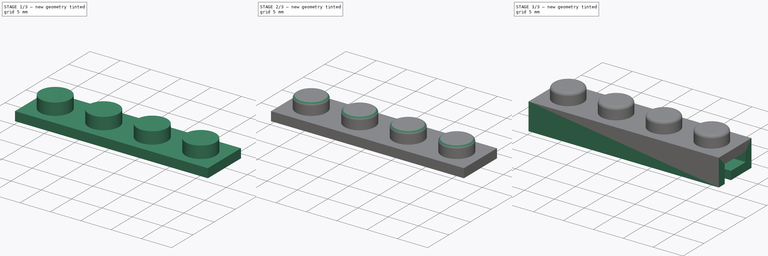
[diagram: build sequence overview — one tinted view per stage of 3, left to right]
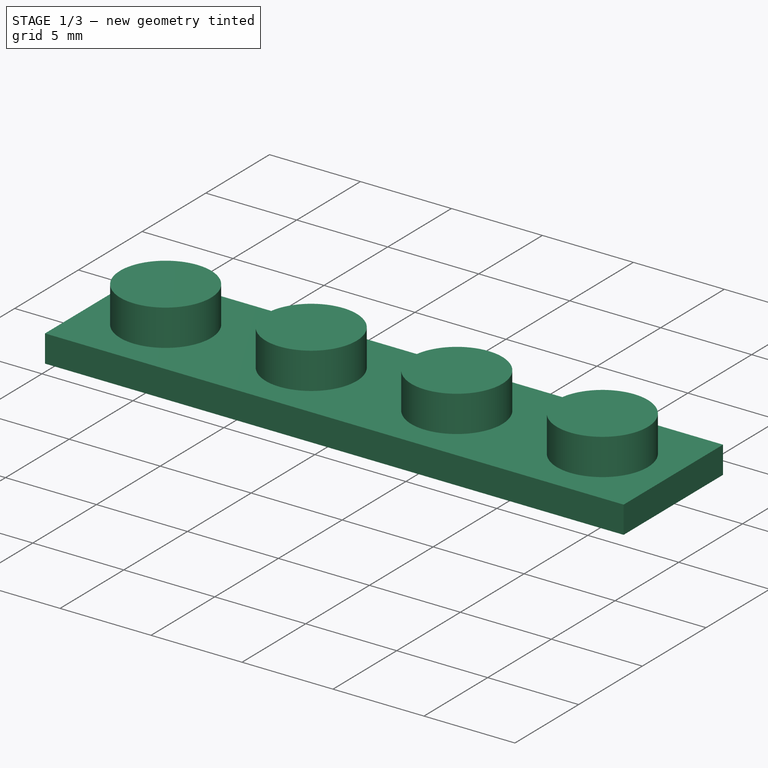
[diagram: stage 1 of 3 — iso view after this stage's code; geometry added in this stage tinted green]
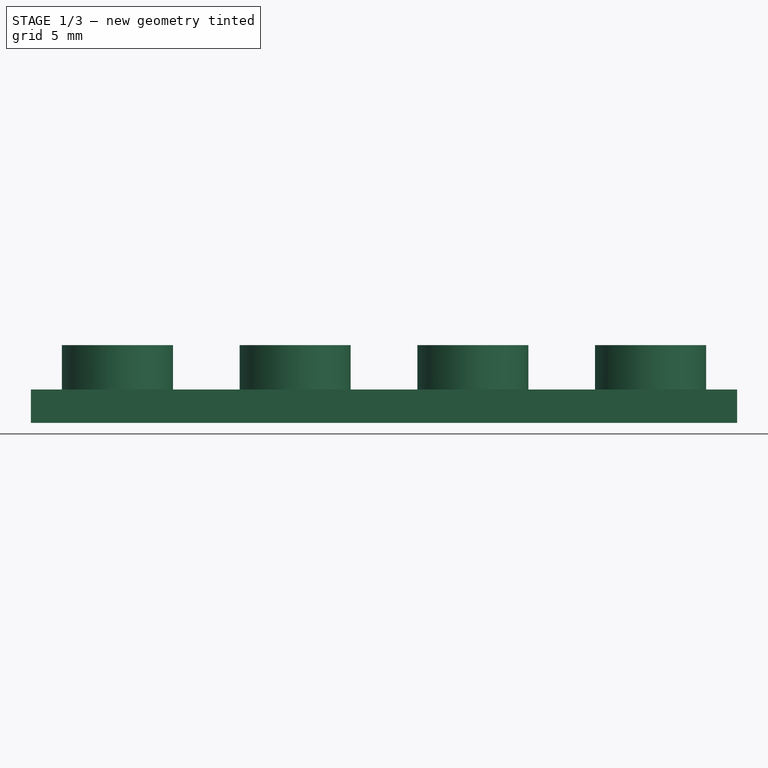
[diagram: stage 1 of 3 — front view after this stage's code; geometry added in this stage tinted green]
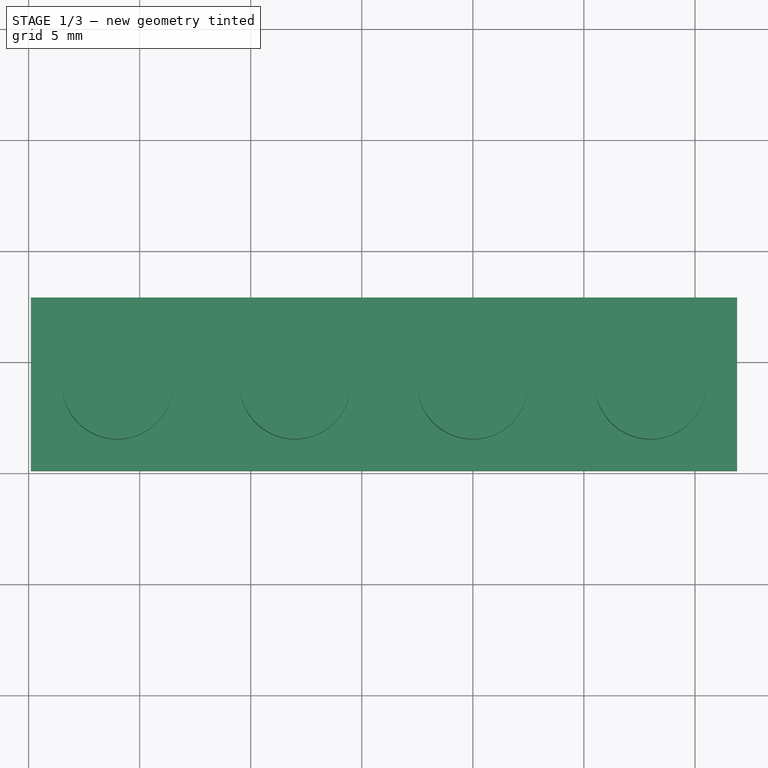
[diagram: stage 1 of 3 — top view after this stage's code; geometry added in this stage tinted green]
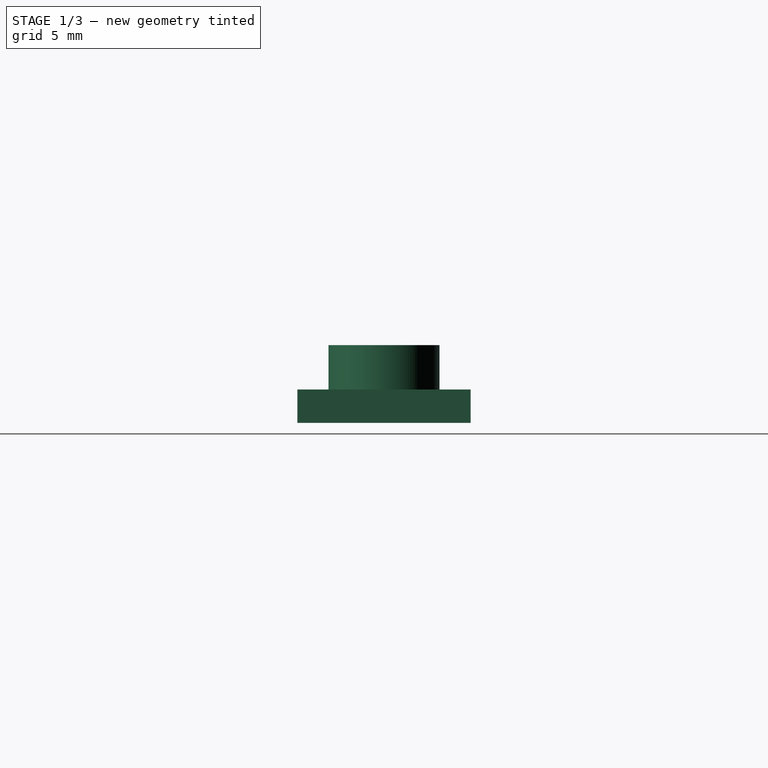
[diagram: stage 1 of 3 — right view after this stage's code; geometry added in this stage tinted green]
FCSTD DOCUMENT  (FreeCAD 1.0R39285 (Git))
Label: Kabelhalter 4x1
License: Creative Commons Attribution-NonCommercial 4.0
LicenseURL: https://creativecommons.org/licenses/by-nc/4.0/
objects: Sketcher::SketchObject×5, PartDesign::Pad×3, PartDesign::Fillet×1, PartDesign::Pocket×1, PartDesign::Body×1
note: 26 computed .brp shape members not serialized (recipe doc carries the construction recipe); baked Part::Feature solids carry a one-line shape summary decoded from their .brp

FEATURE [Sketcher::SketchObject] Sketch  label="H_Aussenmaß"
  ArcFitTolerance = 1e-06
  AttachmentSupport = -> [XY_Plane]
  FullyConstrained = true
  MakeInternals = false
  MapMode = 5
  sketch-geometry (4):
    g0: LineSegment StartX=0 StartY=0 StartZ=0 EndX=32 EndY=0 EndZ=0
    g1: LineSegment StartX=32 StartY=0 StartZ=0 EndX=32 EndY=8 EndZ=0
    g2: LineSegment StartX=32 StartY=8 StartZ=0 EndX=0 EndY=8 EndZ=0
    g3: LineSegment StartX=0 StartY=8 StartZ=0 EndX=0 EndY=0 EndZ=0
  constraints (11):
    c: Coincident(g0,g1)
    c: Coincident(g1,g2)
    c: Coincident(g2,g3)
    c: Coincident(g3,g0)
    c: Horizontal(g0)
    c: Horizontal(g2)
    c: Vertical(g1)
    c: Vertical(g3)
    c: Coincident(g0,g-1)
    c: DistanceX(g2,g2) = 32
    c: DistanceY(g3,g3) = 8
FEATURE [Sketcher::SketchObject] Sketch001  label="S_Body"
  ArcFitTolerance = 1e-06
  AttachmentSupport = -> [XY_Plane]
  ExternalGeometry = -> [Sketch]
  FullyConstrained = true
  MakeInternals = false
  MapMode = 5
  sketch-geometry (9):
    g0: LineSegment StartX=0.1 StartY=7.9 StartZ=0 EndX=0.1 EndY=0.1 EndZ=0
    g1: LineSegment StartX=0.1 StartY=0.1 StartZ=0 EndX=31.9 EndY=0.1 EndZ=0
    g2: LineSegment StartX=31.9 StartY=7.9 StartZ=0 EndX=0.1 EndY=7.9 EndZ=0
    g3: LineSegment [constr] StartX=16 StartY=8 StartZ=0 EndX=16 EndY=0 EndZ=0
    g4: LineSegment [constr] StartX=8 StartY=8 StartZ=0 EndX=8 EndY=0 EndZ=0
    g5: LineSegment [constr] StartX=24 StartY=8 StartZ=0 EndX=24 EndY=0 EndZ=0
    g6: LineSegment [constr] StartX=0 StartY=4 StartZ=0 EndX=32 EndY=4 EndZ=0
    g7: LineSegment StartX=31.9 StartY=7.9 StartZ=0 EndX=31.9 EndY=0.1 EndZ=0
    g8: LineSegment [constr] StartX=4 StartY=8 StartZ=0 EndX=4 EndY=0 EndZ=0
  constraints (24):
    c: Coincident(g0,g1)
    c: Coincident(g2,g0)
    c: Symmetric(g-5,g-5,g3)
    c: Symmetric(g0,g2,g3)
    c: DistanceX(g-1,g0) = 0.1
    c: Vertical(g4)
    c: Vertical(g5)
    c: PointOnObject(g4,g-5)
    c: PointOnObject(g4,g-3)
    c: Symmetric(g-6,g3,g4)
    c: PointOnObject(g5,g-5)
    c: Symmetric(g3,g-4,g5)
    c: Horizontal(g2)
    c: Horizontal(g1)
    c: DistanceY(g-1,g0) = 0.1
    c: Symmetric(g-6,g-6,g6)
    c: Symmetric(g-4,g-4,g6)
    c: Coincident(g7,g2)
    c: Coincident(g7,g1)
    c: Vertical(g7)
    c: Symmetric(g0,g0,g6)
    c: PointOnObject(g8,g-5)
    c: Vertical(g8)
    c: Symmetric(g-6,g4,g8)
FEATURE [PartDesign::Pad] Pad  label="Body001"
  Direction = (0,0,1)
  Length = 1.5
  Length2 = 10
  Profile = -> Sketch001
  ReferenceAxis = -> Sketch001 [N_Axis]
  Refine = true
  Reversed = true
  Suppressed = false
  Type = 0
FEATURE [Sketcher::SketchObject] Sketch002  label="S:studs"
  ArcFitTolerance = 1e-06
  AttachmentSupport = -> [XY_Plane]
  ExternalGeometry = -> [Sketch]
  FullyConstrained = true
  MakeInternals = false
  MapMode = 5
  sketch-geometry (12):
    g0: LineSegment [constr] StartX=16 StartY=8 StartZ=0 EndX=16 EndY=0 EndZ=0
    g1: LineSegment [constr] StartX=24 StartY=8 StartZ=0 EndX=24 EndY=0 EndZ=0
    g2: LineSegment [constr] StartX=8 StartY=8 StartZ=0 EndX=8 EndY=0 EndZ=0
    g3: LineSegment [constr] StartX=4 StartY=8 StartZ=0 EndX=4 EndY=0 EndZ=0
    g4: LineSegment [constr] StartX=12 StartY=8 StartZ=0 EndX=12 EndY=0 EndZ=0
    g5: LineSegment [constr] StartX=20 StartY=8 StartZ=0 EndX=20 EndY=0 EndZ=0
    g6: LineSegment [constr] StartX=28 StartY=8 StartZ=0 EndX=28 EndY=0 EndZ=0
    g7: LineSegment [constr] StartX=0 StartY=4 StartZ=0 EndX=32 EndY=4 EndZ=0
    g8: Circle CenterX=4 CenterY=4 CenterZ=0 NormalX=0 NormalY=0 NormalZ=1 AngleXU=0 Radius=2.5
    g9: Circle CenterX=12 CenterY=4 CenterZ=0 NormalX=0 NormalY=0 NormalZ=1 AngleXU=0 Radius=2.5
    g10: Circle CenterX=20 CenterY=4 CenterZ=0 NormalX=0 NormalY=0 NormalZ=1 AngleXU=0 Radius=2.5
    g11: Circle CenterX=28 CenterY=4 CenterZ=0 NormalX=0 NormalY=0 NormalZ=1 AngleXU=0 Radius=2.5
  constraints (35):
    c: Symmetric(g-4,g-4,g0)
    c: Symmetric(g-6,g-6,g0)
    c: PointOnObject(g1,g-6)
    c: Vertical(g1)
    c: PointOnObject(g2,g-6)
    c: Vertical(g2)
    c: PointOnObject(g3,g-6)
    c: Vertical(g3)
    c: PointOnObject(g4,g-6)
    c: Vertical(g4)
    c: PointOnObject(g5,g-6)
    c: Vertical(g5)
    c: PointOnObject(g6,g-6)
    c: Vertical(g6)
    c: Symmetric(g-4,g0,g2)
    c: Symmetric(g0,g-5,g1)
    c: Symmetric(g1,g0,g5)
    c: Symmetric(g1,g-5,g6)
    c: Symmetric(g2,g0,g4)
    c: Symmetric(g2,g-4,g3)
    c: PointOnObject(g7,g-5)
    c: Horizontal(g7)
    c: Symmetric(g-4,g-1,g7)
    c: PointOnObject(g8,g7)
    c: PointOnObject(g9,g7)
    c: PointOnObject(g10,g7)
    c: PointOnObject(g11,g7)
    c: Diameter(g8) = 5
    c: Equal(g8,g9)
    c: Equal(g8,g10)
    c: Equal(g8,g11)
    c: PointOnObject(g8,g3)
    c: PointOnObject(g9,g4)
    c: PointOnObject(g10,g5)
    c: PointOnObject(g11,g6)
FEATURE [PartDesign::Pad] Pad001
  BaseFeature = -> Pad
  Direction = (0,0,1)
  Length = 2
  Length2 = 10
  Profile = -> Sketch002
  ReferenceAxis = -> Sketch002 [N_Axis]
  Refine = true
  Suppressed = false
  Type = 0
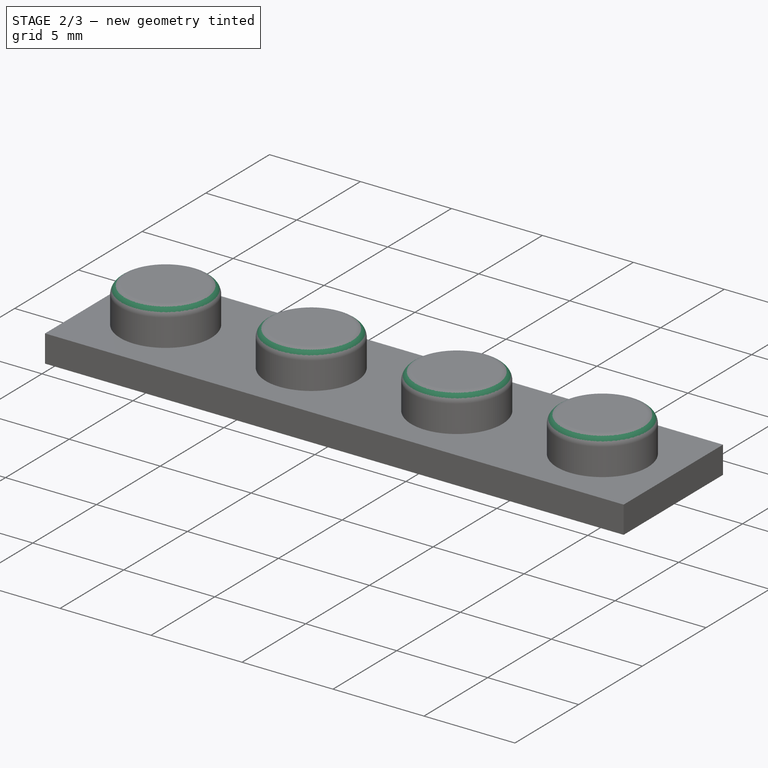
[diagram: stage 2 of 3 — iso view after this stage's code; geometry added in this stage tinted green]
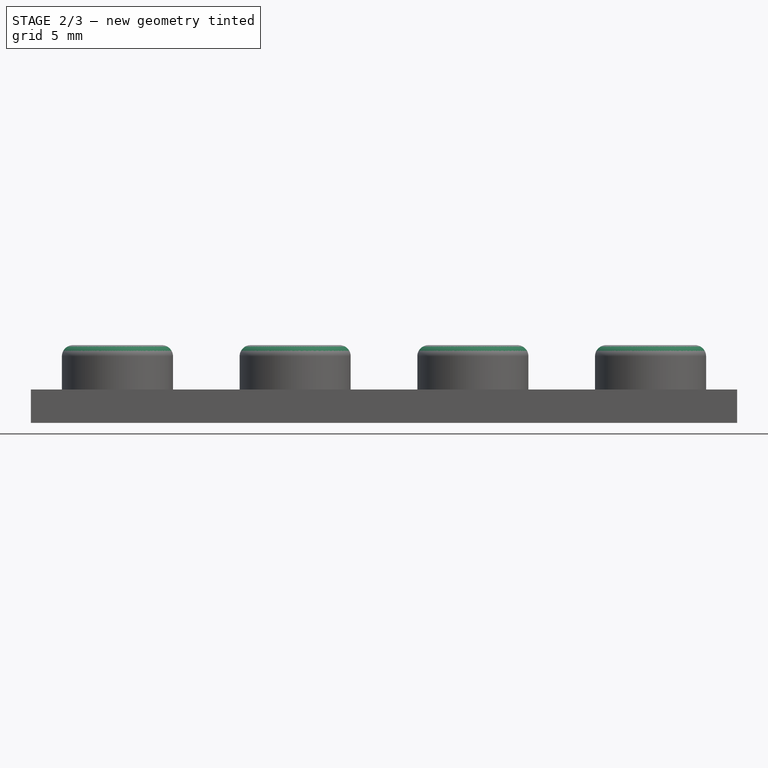
[diagram: stage 2 of 3 — front view after this stage's code; geometry added in this stage tinted green]
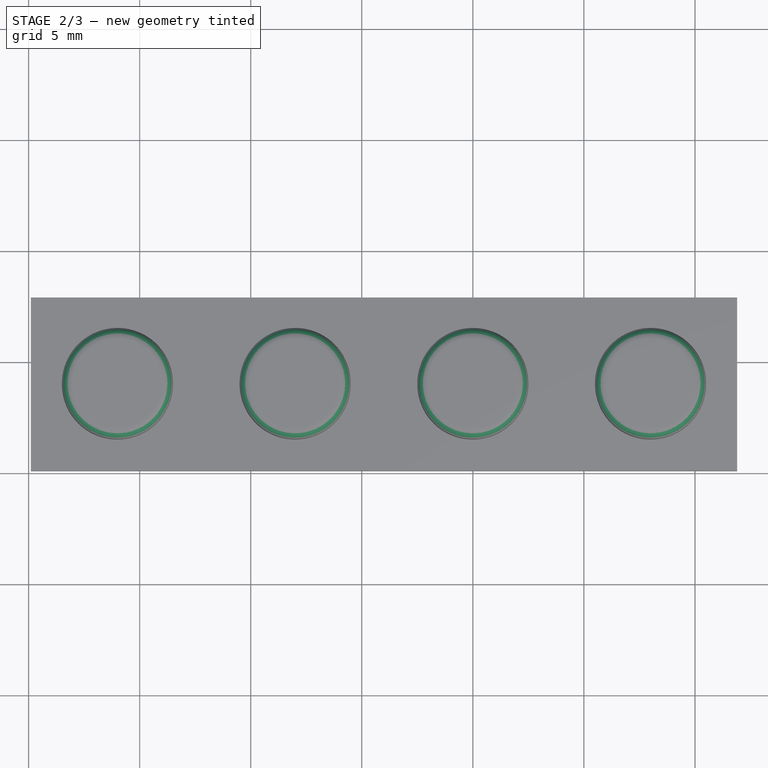
[diagram: stage 2 of 3 — top view after this stage's code; geometry added in this stage tinted green]
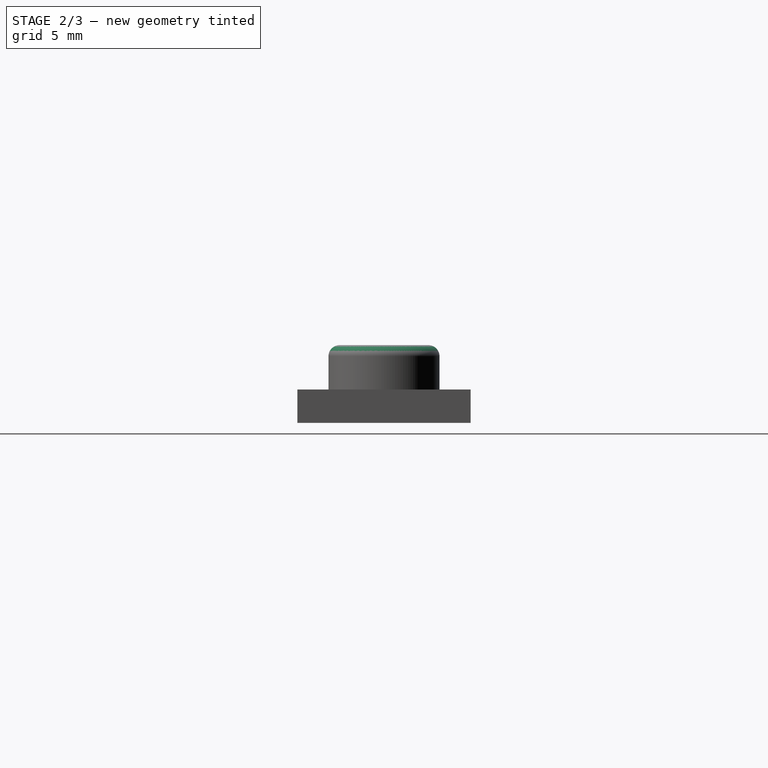
[diagram: stage 2 of 3 — right view after this stage's code; geometry added in this stage tinted green]
FEATURE [PartDesign::Fillet] Fillet  label="stud_rounding"
  Base = -> Pad001 [Edge18,Edge20,Edge22,Edge24]
  BaseFeature = -> Pad001
  Radius = 0.5
  Refine = true
  SupportTransform = false
  Suppressed = false
  UseAllEdges = false
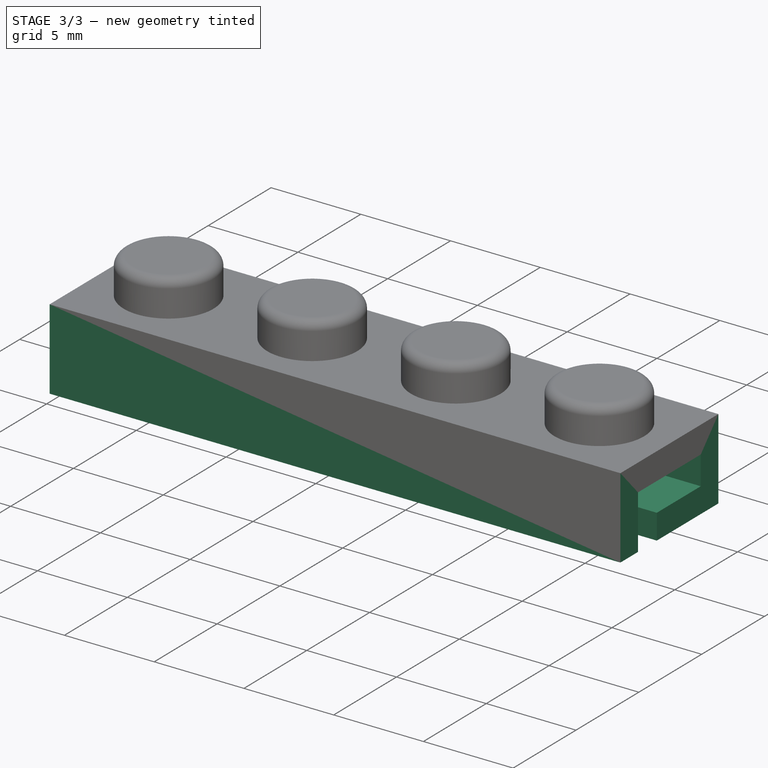
[diagram: stage 3 of 3 — iso view after this stage's code; geometry added in this stage tinted green]
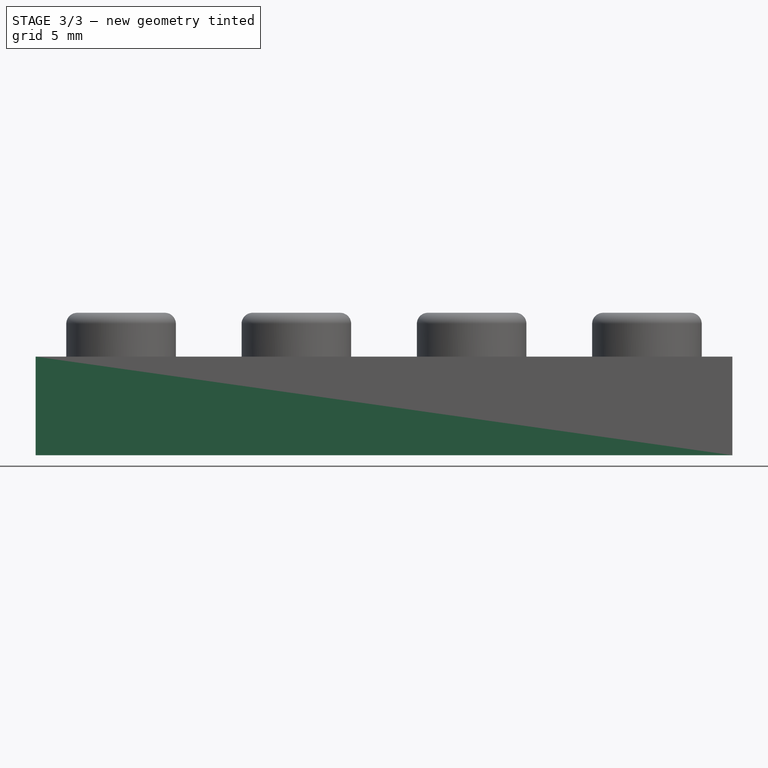
[diagram: stage 3 of 3 — front view after this stage's code; geometry added in this stage tinted green]
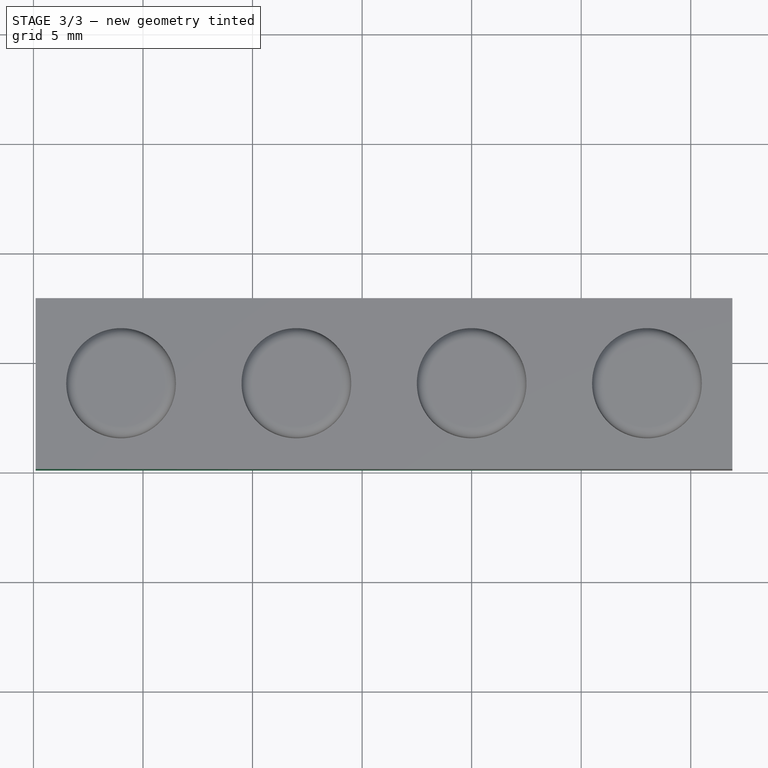
[diagram: stage 3 of 3 — top view after this stage's code; geometry added in this stage tinted green]
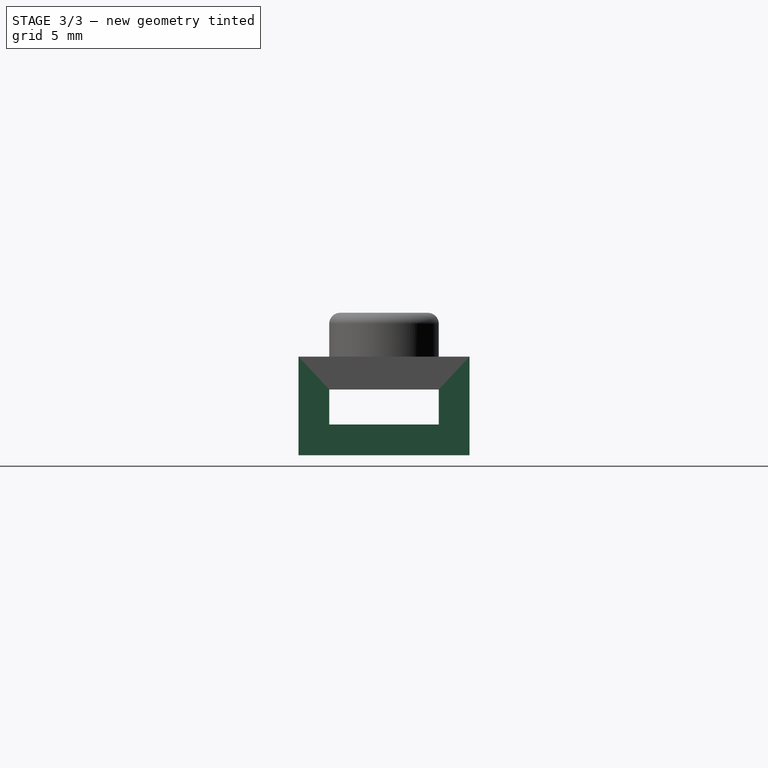
[diagram: stage 3 of 3 — right view after this stage's code; geometry added in this stage tinted green]
FEATURE [Sketcher::SketchObject] Sketch003
  ArcFitTolerance = 1e-06
  AttachmentSupport = -> [XY_Plane]
  ExternalGeometry = -> [Pad]
  FullyConstrained = true
  MakeInternals = false
  MapMode = 5
  sketch-geometry (31):
    g0: LineSegment StartX=0.1 StartY=7.9 StartZ=0 EndX=31.9 EndY=7.9 EndZ=0
    g1: LineSegment StartX=31.9 StartY=7.9 StartZ=0 EndX=31.9 EndY=3 EndZ=0
    g2: LineSegment StartX=31.9 StartY=3 StartZ=0 EndX=29.9 EndY=3 EndZ=0
    g3: LineSegment StartX=29.9 StartY=3 StartZ=0 EndX=29.9 EndY=6.5 EndZ=0
    g4: LineSegment StartX=29.9 StartY=6.5 StartZ=0 EndX=17 EndY=6.5 EndZ=0
    g5: LineSegment StartX=17 StartY=6.5 StartZ=0 EndX=17 EndY=3 EndZ=0
    g6: LineSegment StartX=17 StartY=3 StartZ=0 EndX=15 EndY=3 EndZ=0
    g7: LineSegment StartX=15 StartY=3 StartZ=0 EndX=15 EndY=6.5 EndZ=0
    g8: LineSegment StartX=15 StartY=6.5 StartZ=0 EndX=2.1 EndY=6.5 EndZ=0
    g9: LineSegment StartX=2.1 StartY=6.5 StartZ=0 EndX=2.1 EndY=3 EndZ=0
    g10: LineSegment StartX=2.1 StartY=3 StartZ=0 EndX=0.1 EndY=3 EndZ=0
    g11: LineSegment StartX=0.1 StartY=3 StartZ=0 EndX=0.1 EndY=7.9 EndZ=0
    g12: LineSegment StartX=0.1 StartY=0.1 StartZ=0 EndX=0.1 EndY=1.5 EndZ=0
    g13: LineSegment StartX=0.1 StartY=1.5 StartZ=0 EndX=7.05 EndY=1.5 EndZ=0
    g14: LineSegment StartX=7.05 StartY=1.5 StartZ=0 EndX=7.05 EndY=5 EndZ=0
    g15: LineSegment StartX=7.05 StartY=5 StartZ=0 EndX=9.05 EndY=5 EndZ=0
    g16: LineSegment StartX=9.05 StartY=5 StartZ=0 EndX=9.05 EndY=1.5 EndZ=0
    g17: LineSegment StartX=9.05 StartY=1.5 StartZ=0 EndX=22.95 EndY=1.5 EndZ=0
    g18: LineSegment StartX=22.95 StartY=1.5 StartZ=0 EndX=22.95 EndY=5 EndZ=0
    g19: LineSegment StartX=22.95 StartY=5 StartZ=0 EndX=24.95 EndY=5 EndZ=0
    g20: LineSegment StartX=24.95 StartY=5 StartZ=0 EndX=24.95 EndY=1.5 EndZ=0
    g21: LineSegment StartX=24.95 StartY=1.5 StartZ=0 EndX=31.9 EndY=1.5 EndZ=0
    g22: LineSegment StartX=31.9 StartY=1.5 StartZ=0 EndX=31.9 EndY=0.1 EndZ=0
    g23: LineSegment StartX=31.9 StartY=0.1 StartZ=0 EndX=0.1 EndY=0.1 EndZ=0
    g24: LineSegment [constr] StartX=15 StartY=6.5 StartZ=0 EndX=17 EndY=6.5 EndZ=0
    g25: LineSegment [constr] StartX=0.1 StartY=4 StartZ=0 EndX=31.9 EndY=4 EndZ=0
    g26: LineSegment [constr] StartX=5.1 StartY=6.5 StartZ=0 EndX=5.1 EndY=1.5 EndZ=0
    g27: LineSegment [constr] StartX=7.05 StartY=1.5 StartZ=0 EndX=9.05 EndY=1.5 EndZ=0
    g28: LineSegment [constr] StartX=22.95 StartY=1.5 StartZ=0 EndX=24.95 EndY=1.5 EndZ=0
    g29: LineSegment [constr] StartX=16 StartY=7.9 StartZ=0 EndX=16 EndY=0.1 EndZ=0
    g30: LineSegment [constr] StartX=8.05 StartY=7.9 StartZ=0 EndX=8.05 EndY=0.1 EndZ=0
  constraints (82):
    c: Coincident(g-4,g0)
    c: Coincident(g0,g-6)
    c: Coincident(g0,g1)
    c: PointOnObject(g1,g-6)
    c: Coincident(g1,g2)
    c: Horizontal(g2)
    c: Coincident(g2,g3)
    c: Vertical(g3)
    c: Coincident(g3,g4)
    c: Horizontal(g4)
    c: Coincident(g4,g5)
    c: Vertical(g5)
    c: Coincident(g5,g6)
    c: Coincident(g6,g7)
    c: Coincident(g7,g8)
    c: Horizontal(g8)
    c: Coincident(g8,g9)
    c: Vertical(g9)
    c: Coincident(g9,g10)
    c: PointOnObject(g10,g-4)
    c: Horizontal(g10)
    c: Coincident(g10,g11)
    c: Coincident(g11,g0)
    c: Coincident(g-5,g12)
    c: PointOnObject(g12,g-4)
    c: Coincident(g12,g13)
    c: Horizontal(g13)
    c: Coincident(g13,g14)
    c: Vertical(g14)
    c: Coincident(g14,g15)
    c: Horizontal(g15)
    c: Coincident(g15,g16)
    c: Vertical(g16)
    c: Coincident(g16,g17)
    c: Horizontal(g17)
    c: Coincident(g17,g18)
    c: Vertical(g18)
    c: Coincident(g18,g19)
    c: Horizontal(g19)
    c: Coincident(g19,g20)
    c: Vertical(g20)
    c: Coincident(g20,g21)
    c: PointOnObject(g21,g-6)
    c: Horizontal(g21)
    c: Coincident(g21,g22)
    c: Coincident(g22,g-6)
    c: Coincident(g22,g23)
    c: Coincident(g23,g12)
    c: Vertical(g7)
    c: Equal(g10,g15)
    c: Equal(g10,g6)
    c: Equal(g10,g19)
    c: Equal(g10,g2)
    c: Equal(g9,g14)
    c: Equal(g9,g7)
    c: Equal(g9,g18)
    c: Equal(g9,g3)
    c: Coincident(g24,g7)
    c: Coincident(g24,g4)
    c: Horizontal(g24)
    c: Symmetric(g0,g12,g25)
    c: Symmetric(g0,g22,g25)
    c: DistanceY(g12,g8) = 5
    c: PointOnObject(g26,g8)
    c: PointOnObject(g26,g17)
    c: Symmetric(g26,g26,g25)
    c: Coincident(g27,g13)
    c: Coincident(g27,g16)
    c: Horizontal(g27)
    c: Horizontal(g28)
    c: Coincident(g28,g17)
    c: Coincident(g28,g20)
    c: DistanceY(g21,g1) = 1.5
    c: DistanceX(g12,g26) = 5
    c: DistanceX(g13,g16) = 2
    c: Symmetric(g0,g0,g29)
    c: Symmetric(g23,g23,g29)
    c: Symmetric(g6,g5,g29)
    c: PointOnObject(g30,g23)
    c: Symmetric(g0,g29,g30)
    c: Symmetric(g14,g15,g30)
    c: Equal(g13,g21)
FEATURE [PartDesign::Pad] Pad002
  BaseFeature = -> Fillet
  Direction = (0,0,1)
  Length = 4.5
  Length2 = 10
  Profile = -> Sketch003
  ReferenceAxis = -> Sketch003 [N_Axis]
  Refine = true
  Reversed = true
  Suppressed = false
  Type = 0
FEATURE [Sketcher::SketchObject] Sketch004
  ArcFitTolerance = 1e-06
  AttachmentSupport = -> [YZ_Plane]
  ExternalGeometry = -> [Pad002]
  FullyConstrained = true
  MakeInternals = false
  MapMode = 5
  Placement = pos=(0,0,0) rot=(0.57735,0.57735,0.57735;2.0944rad)
  sketch-geometry (6):
    g0: LineSegment [constr] StartX=0.1 StartY=-4.5 StartZ=0 EndX=7.9 EndY=-4.5 EndZ=0
    g1: LineSegment [constr] StartX=4 StartY=0 StartZ=0 EndX=4 EndY=-4.5 EndZ=0
    g2: LineSegment StartX=1.5 StartY=-1.5 StartZ=0 EndX=1.5 EndY=-3.1 EndZ=0
    g3: LineSegment StartX=1.5 StartY=-3.1 StartZ=0 EndX=6.5 EndY=-3.1 EndZ=0
    g4: LineSegment StartX=6.5 StartY=-3.1 StartZ=0 EndX=6.5 EndY=-1.5 EndZ=0
    g5: LineSegment StartX=6.5 StartY=-1.5 StartZ=0 EndX=1.5 EndY=-1.5 EndZ=0
  constraints (14):
    c: Coincident(g0,g-4)
    c: Coincident(g0,g-5)
    c: Symmetric(g-3,g-3,g1)
    c: Symmetric(g0,g0,g1)
    c: Coincident(g2,g3)
    c: Coincident(g3,g4)
    c: Coincident(g4,g5)
    c: Coincident(g5,g2)
    c: Vertical(g2)
    c: Vertical(g4)
    c: Horizontal(g5)
    c: Symmetric(g2,g3,g1)
    c: DistanceY(g4,g4) = 1.6
    c: Coincident(g2,g-6)
FEATURE [PartDesign::Pocket] Pocket
  BaseFeature = -> Pad002
  Direction = (-1,0,0)
  Length = 100
  Length2 = 5
  Profile = -> Sketch004
  ReferenceAxis = -> Sketch004 [N_Axis]
  Refine = true
  Reversed = true
  Suppressed = false
  Type = 0
FEATURE [PartDesign::Body] Body  label="Kabelhalter_oben 4x1"
  AllowCompound = false
  Group = -> [Sketch,Sketch001,Pad,Sketch002,Pad001,Fillet,Sketch003,Pad002,Sketch004,Pocket]
  Origin = -> Origin
  Tip = -> Pocket
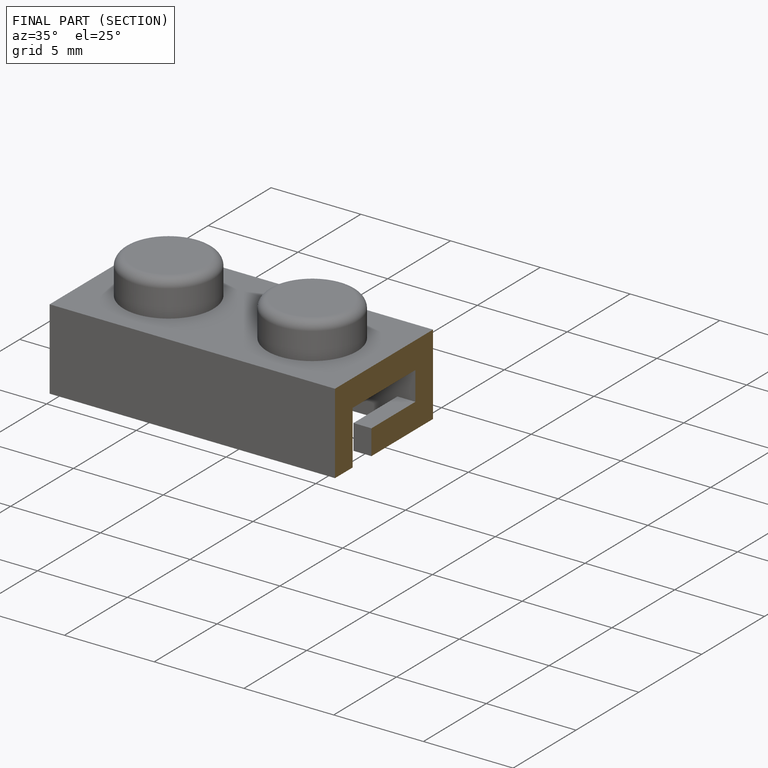
[diagram: finished part — half-section view (interior)]
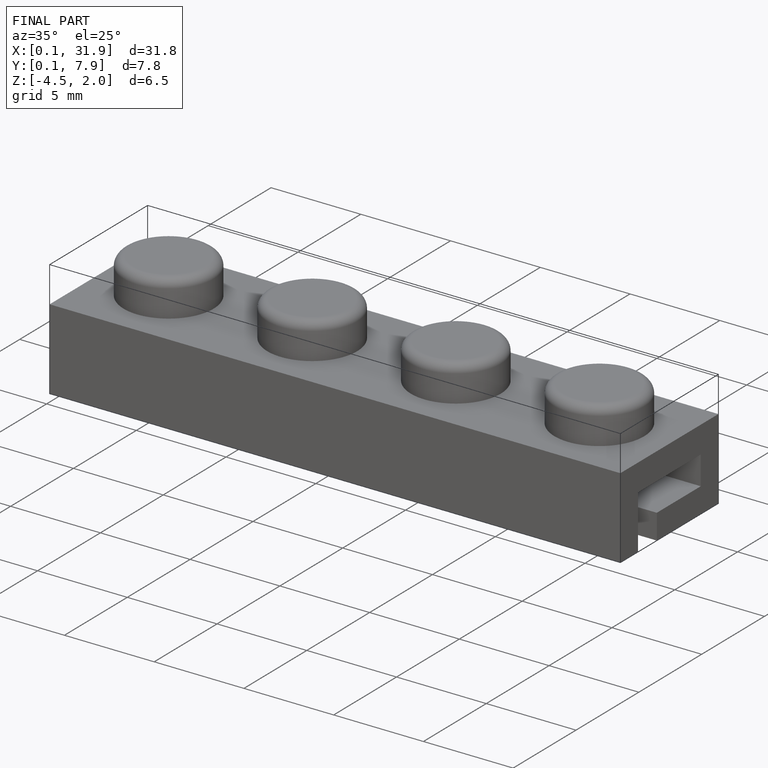
[diagram: finished part — iso view with bounding-box wireframe]
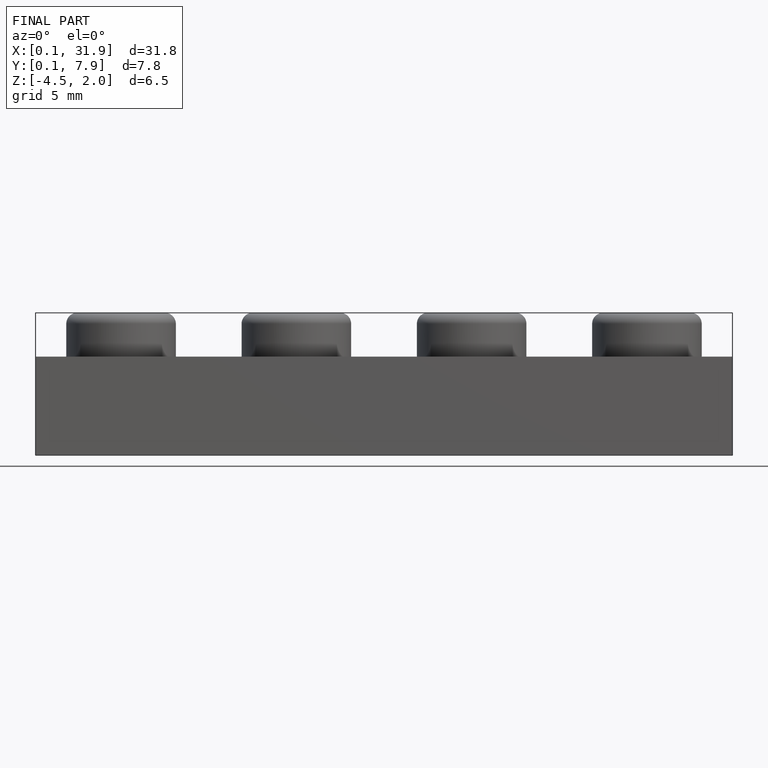
[diagram: finished part — front view with bounding-box wireframe]
